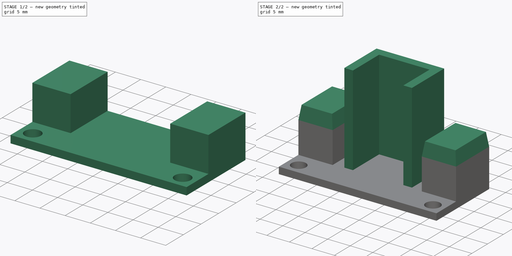
[diagram: build sequence overview — one tinted view per stage of 2, left to right]
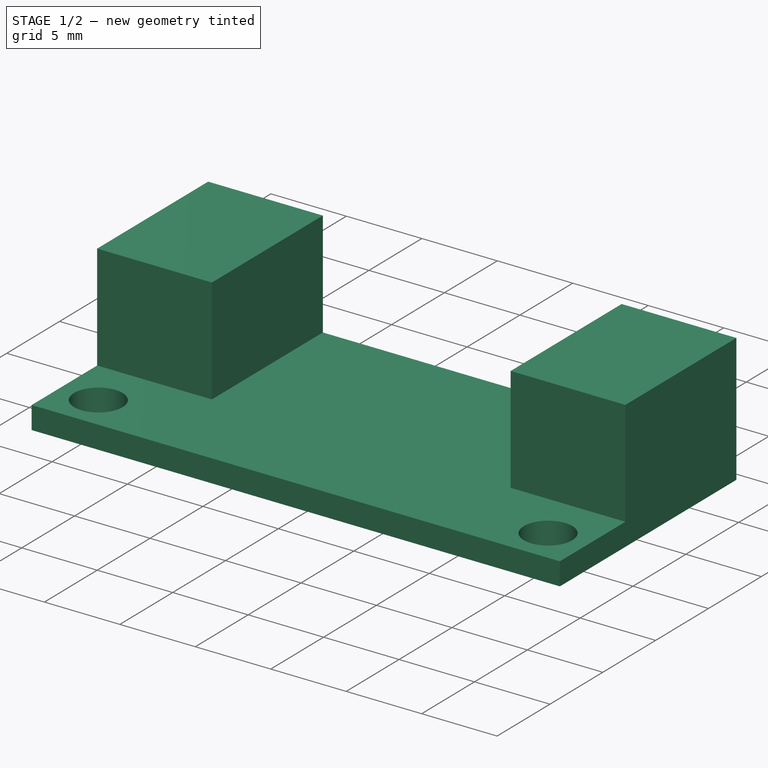
[diagram: stage 1 of 2 — iso view after this stage's code; geometry added in this stage tinted green]
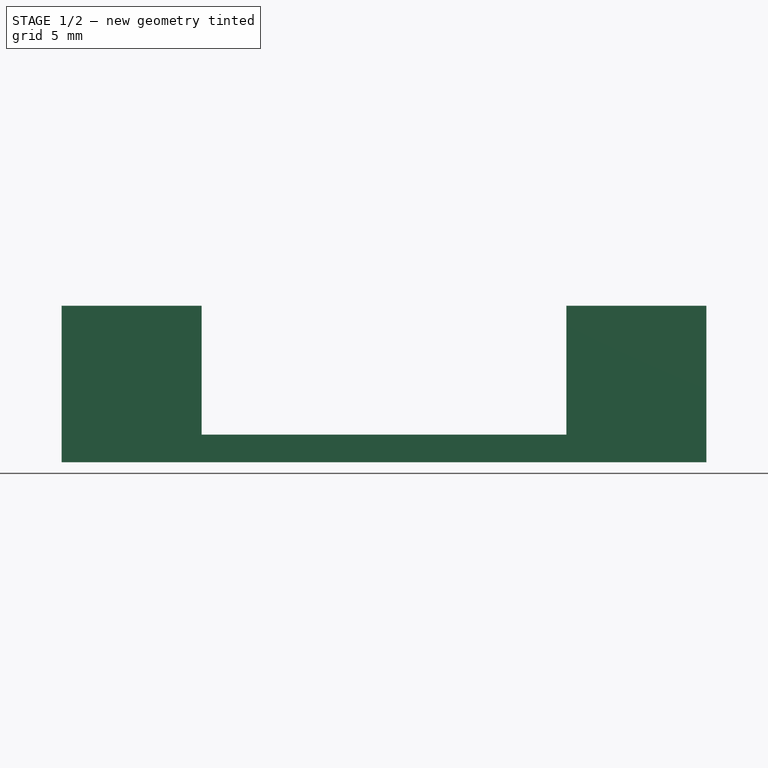
[diagram: stage 1 of 2 — front view after this stage's code; geometry added in this stage tinted green]
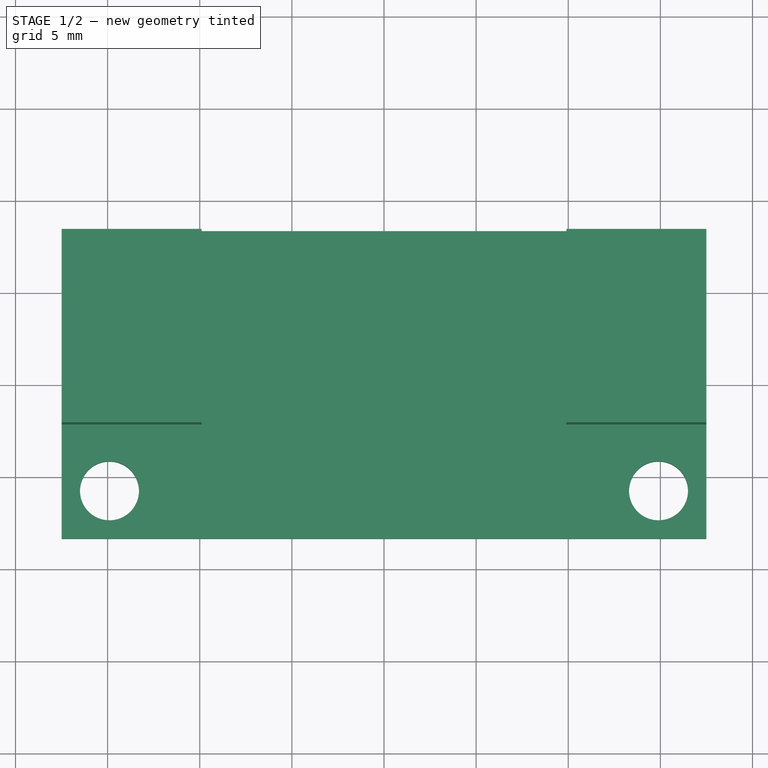
[diagram: stage 1 of 2 — top view after this stage's code; geometry added in this stage tinted green]
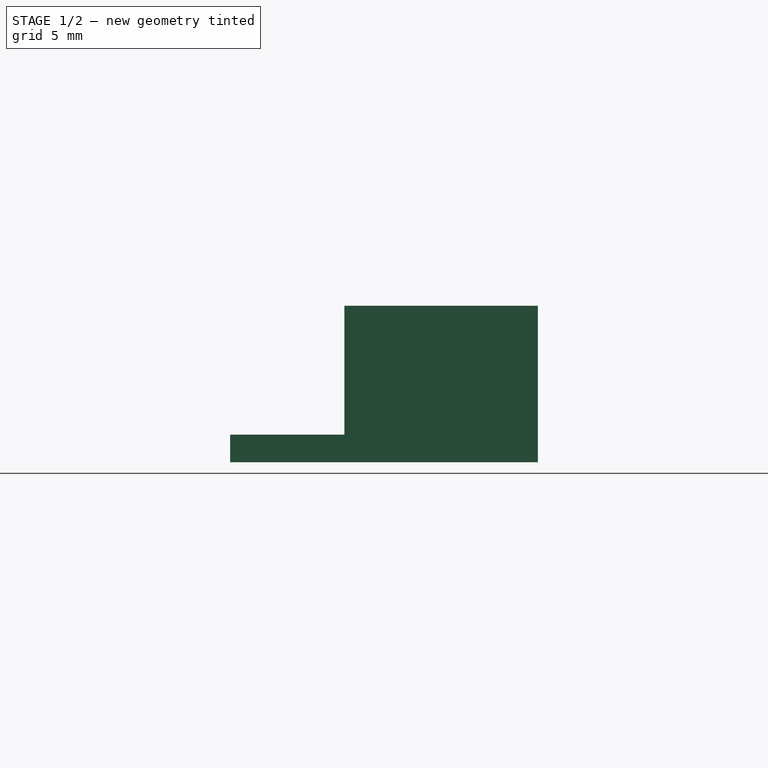
[diagram: stage 1 of 2 — right view after this stage's code; geometry added in this stage tinted green]
FCSTD DOCUMENT  (FreeCAD 0.22R36807 (Git))
Label: Buck Converter
License: Creative Commons Attribution 4.0
LicenseURL: https://creativecommons.org/licenses/by/4.0/
objects: Sketcher::SketchObject×4, PartDesign::Pad×4, Spreadsheet::Sheet×1, PartDesign::Body×1
note: 13 computed .brp shape members not serialized (recipe doc carries the construction recipe); baked Part::Feature solids carry a one-line shape summary decoded from their .brp

FEATURE [Sketcher::SketchObject] Sketch
  AttachmentSupport = -> [XY_Plane]
  FullyConstrained = true
  MapMode = 5
  expr: Constraints[10] = <<config>>.width
  expr: Constraints[12] = <<config>>.boltHoleRadius
  expr: Constraints[13] = <<config>>.boltHoleCenterToEdge
  expr: Constraints[14] = <<config>>.boltHoleCenterToEdge
  expr: Constraints[9] = <<config>>.length
  sketch-geometry (7):
    g0: LineSegment StartX=-17.5 StartY=-8.35 StartZ=0 EndX=17.5 EndY=-8.35 EndZ=0
    g1: LineSegment StartX=17.5 StartY=-8.35 StartZ=0 EndX=17.5 EndY=8.35 EndZ=0
    g2: LineSegment StartX=17.5 StartY=8.35 StartZ=0 EndX=-17.5 EndY=8.35 EndZ=0
    g3: LineSegment StartX=-17.5 StartY=8.35 StartZ=0 EndX=-17.5 EndY=-8.35 EndZ=0
    g4: GeomPoint X=0 Y=0 Z=0
    g5: Circle CenterX=-14.9 CenterY=-5.75 CenterZ=0 NormalX=0 NormalY=0 NormalZ=1 AngleXU=0 Radius=1.6
    g6: Circle CenterX=14.9 CenterY=-5.75 CenterZ=0 NormalX=0 NormalY=0 NormalZ=1 AngleXU=0 Radius=1.6
  constraints (17):
    c: Coincident(g0,g1)
    c: Coincident(g1,g2)
    c: Coincident(g2,g3)
    c: Coincident(g3,g0)
    c: Horizontal(g0)
    c: Horizontal(g2)
    c: Vertical(g1)
    c: Vertical(g3)
    c: Symmetric(g2,g0,g4)
    c: Distance(g1,g3) = 35
    c: Distance(g0,g2) = 16.7
    c: Coincident(g4,g-1)
    c: Radius(g5) = 1.6
    c: DistanceX(g0,g5) = 2.6
    c: DistanceY(g0,g5) = 2.6
    c: Equal(g6,g5)
    c: Symmetric(g6,g5,g-2)
FEATURE [Spreadsheet::Sheet] Spreadsheet  label="config"
  cells = A2='width; B2(width)=16.7; A3='length; B3(length)=35; A4='boltHoleRadius; B4(boltHoleRadius)=1.6; A5='boltHoleDistanceFromEdge; B5(boltHoleCenterToEdge)=2.6
FEATURE [PartDesign::Pad] Pad
  Direction = (0,0,1)
  Length = 1.5
  Length2 = 10
  Profile = -> Sketch
  ReferenceAxis = -> Sketch [N_Axis]
  Suppressed = false
  Type = 0
FEATURE [Sketcher::SketchObject] Sketch001
  AttachmentSupport = -> [Pad]
  ExternalGeometry = -> [Sketch]
  FullyConstrained = true
  MapMode = 5
  Placement = pos=(0,0,1.5) rot=(0,0,1;0rad)
  sketch-geometry (8):
    g0: LineSegment StartX=-17.5 StartY=8.35 StartZ=0 EndX=-17.5 EndY=-2.15 EndZ=0
    g1: LineSegment StartX=-17.5 StartY=-2.15 StartZ=0 EndX=-9.9 EndY=-2.15 EndZ=0
    g2: LineSegment StartX=-9.9 StartY=-2.15 StartZ=0 EndX=-9.9 EndY=8.35 EndZ=0
    g3: LineSegment StartX=-9.9 StartY=8.35 StartZ=0 EndX=-17.5 EndY=8.35 EndZ=0
    g4: LineSegment StartX=17.5 StartY=8.35 StartZ=0 EndX=9.9 EndY=8.35 EndZ=0
    g5: LineSegment StartX=9.9 StartY=8.35 StartZ=0 EndX=9.9 EndY=-2.15 EndZ=0
    g6: LineSegment StartX=9.9 StartY=-2.15 StartZ=0 EndX=17.5 EndY=-2.15 EndZ=0
    g7: LineSegment StartX=17.5 StartY=-2.15 StartZ=0 EndX=17.5 EndY=8.35 EndZ=0
  constraints (22):
    c: Coincident(g0,g1)
    c: Coincident(g1,g2)
    c: Coincident(g2,g3)
    c: Coincident(g3,g0)
    c: Vertical(g0)
    c: Vertical(g2)
    c: Horizontal(g1)
    c: Horizontal(g3)
    c: Distance(g0,g2) = 7.6
    c: Distance(g1,g3) = 10.5
    c: Coincident(g0,g-3)
    c: Coincident(g4,g5)
    c: Coincident(g5,g6)
    c: Coincident(g6,g7)
    c: Coincident(g7,g4)
    c: Horizontal(g4)
    c: Horizontal(g6)
    c: Vertical(g5)
    c: Vertical(g7)
    c: Distance(g5,g7) = 7.6
    c: Distance(g4,g6) = 10.5
    c: Coincident(g4,g-4)
FEATURE [PartDesign::Pad] Pad001
  BaseFeature = -> Pad
  Direction = (0,0,1)
  Length = 7
  Length2 = 10
  Profile = -> Sketch001
  ReferenceAxis = -> Sketch001 [N_Axis]
  Suppressed = false
  Type = 0
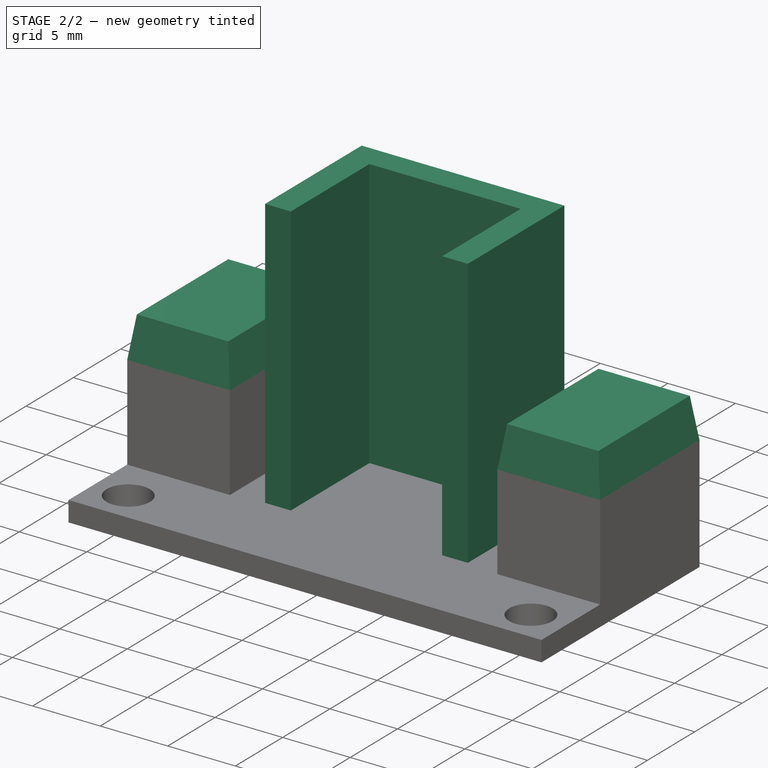
[diagram: stage 2 of 2 — iso view after this stage's code; geometry added in this stage tinted green]
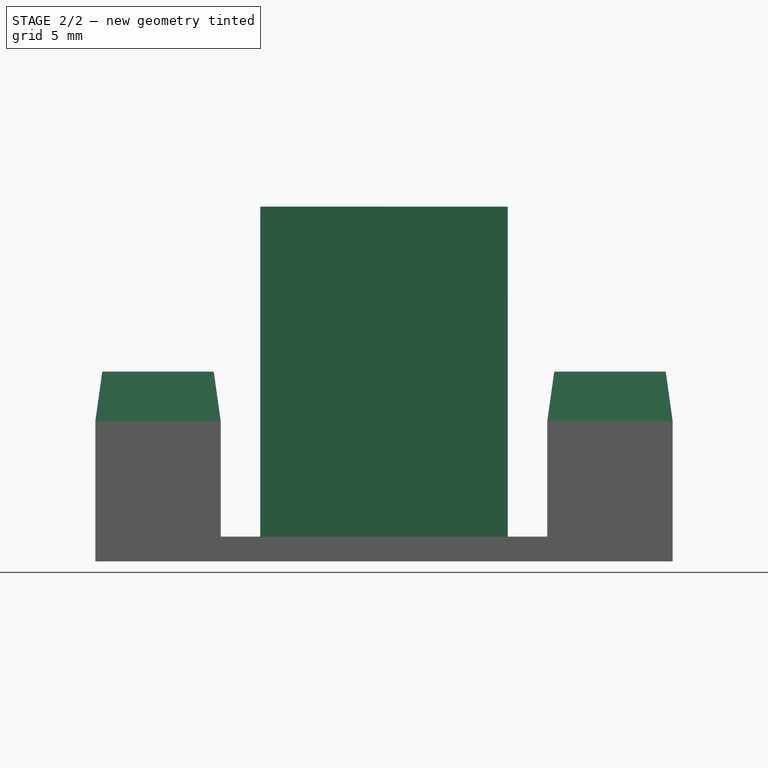
[diagram: stage 2 of 2 — front view after this stage's code; geometry added in this stage tinted green]
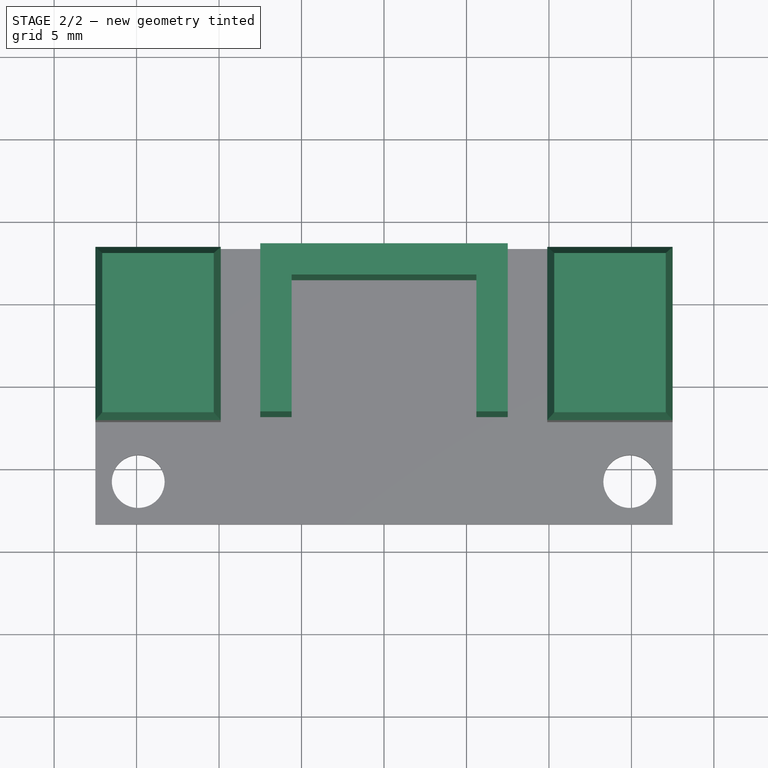
[diagram: stage 2 of 2 — top view after this stage's code; geometry added in this stage tinted green]
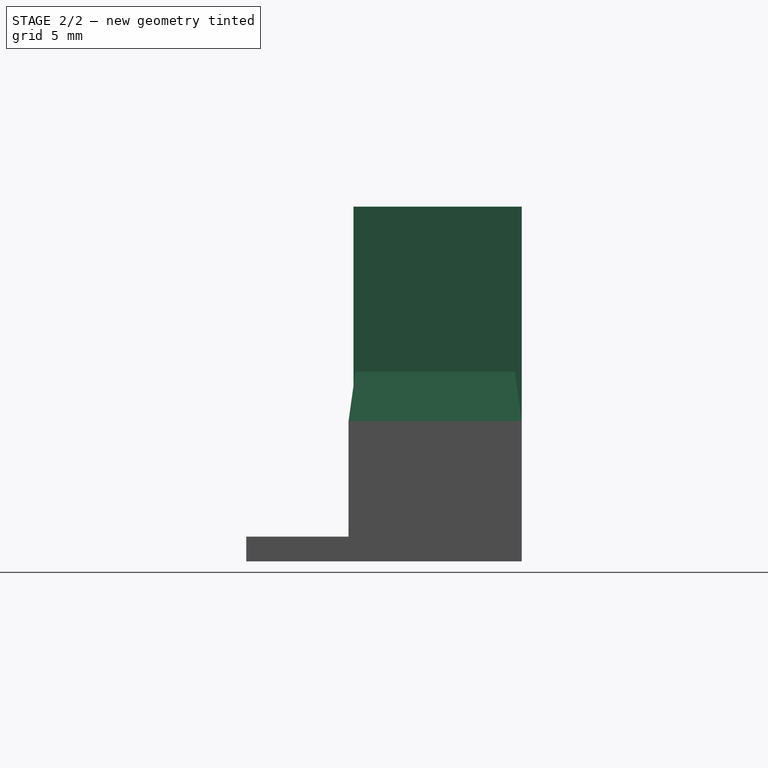
[diagram: stage 2 of 2 — right view after this stage's code; geometry added in this stage tinted green]
FEATURE [Sketcher::SketchObject] Sketch002
  AttachmentSupport = -> [Pad001]
  ExternalGeometry = -> [Sketch001]
  FullyConstrained = true
  MapMode = 5
  Placement = pos=(0,0,8.5) rot=(0,0,1;0rad)
  sketch-geometry (8):
    g0: LineSegment StartX=-17.5 StartY=8.35 StartZ=0 EndX=-17.5 EndY=-2.15 EndZ=0
    g1: LineSegment StartX=-17.5 StartY=-2.15 StartZ=0 EndX=-9.9 EndY=-2.15 EndZ=0
    g2: LineSegment StartX=-9.9 StartY=-2.15 StartZ=0 EndX=-9.9 EndY=8.35 EndZ=0
    g3: LineSegment StartX=-9.9 StartY=8.35 StartZ=0 EndX=-17.5 EndY=8.35 EndZ=0
    g4: LineSegment StartX=17.5 StartY=8.35 StartZ=0 EndX=9.9 EndY=8.35 EndZ=0
    g5: LineSegment StartX=9.9 StartY=8.35 StartZ=0 EndX=9.9 EndY=-2.15 EndZ=0
    g6: LineSegment StartX=9.9 StartY=-2.15 StartZ=0 EndX=17.5 EndY=-2.15 EndZ=0
    g7: LineSegment StartX=17.5 StartY=-2.15 StartZ=0 EndX=17.5 EndY=8.35 EndZ=0
  constraints (20):
    c: Coincident(g0,g1)
    c: Coincident(g1,g2)
    c: Coincident(g2,g3)
    c: Coincident(g3,g0)
    c: Vertical(g0)
    c: Vertical(g2)
    c: Horizontal(g1)
    c: Horizontal(g3)
    c: Coincident(g0,g-3)
    c: Coincident(g1,g-4)
    c: Coincident(g4,g5)
    c: Coincident(g5,g6)
    c: Coincident(g6,g7)
    c: Coincident(g7,g4)
    c: Horizontal(g4)
    c: Horizontal(g6)
    c: Vertical(g5)
    c: Vertical(g7)
    c: Coincident(g4,g-5)
    c: Coincident(g5,g-6)
FEATURE [PartDesign::Pad] Pad002
  BaseFeature = -> Pad001
  Direction = (0,0,1)
  Length = 3
  Length2 = 10
  Profile = -> Sketch002
  ReferenceAxis = -> Sketch002 [N_Axis]
  Suppressed = false
  TaperAngle = -8
  Type = 0
FEATURE [Sketcher::SketchObject] Sketch003
  AttachmentSupport = -> [Pad002]
  ExternalGeometry = -> [Sketch]
  FullyConstrained = true
  MapMode = 5
  Placement = pos=(0,0,1.5) rot=(0,0,1;0rad)
  sketch-geometry (8):
    g0: LineSegment StartX=-7.5 StartY=8.35 StartZ=0 EndX=-7.5 EndY=-1.85 EndZ=0
    g1: LineSegment StartX=7.5 StartY=-1.85 StartZ=0 EndX=7.5 EndY=8.35 EndZ=0
    g2: LineSegment StartX=7.5 StartY=8.35 StartZ=0 EndX=-7.5 EndY=8.35 EndZ=0
    g3: LineSegment StartX=-7.5 StartY=-1.85 StartZ=0 EndX=-5.6 EndY=-1.85 EndZ=0
    g4: LineSegment StartX=-5.6 StartY=-1.85 StartZ=0 EndX=-5.6 EndY=6.45 EndZ=0
    g5: LineSegment StartX=-5.6 StartY=6.45 StartZ=0 EndX=5.6 EndY=6.45 EndZ=0
    g6: LineSegment StartX=5.6 StartY=6.45 StartZ=0 EndX=5.6 EndY=-1.85 EndZ=0
    g7: LineSegment StartX=5.6 StartY=-1.85 StartZ=0 EndX=7.5 EndY=-1.85 EndZ=0
  constraints (23):
    c: Coincident(g1,g2)
    c: Coincident(g2,g0)
    c: Vertical(g0)
    c: Vertical(g1)
    c: Horizontal(g2)
    c: Distance(g0,g1) = 15
    c: Distance(g0,g2) = 10.2
    c: PointOnObject(g0,g-3)
    c: Symmetric(g0,g1,g-2)
    c: Coincident(g0,g3)
    c: Horizontal(g3)
    c: Coincident(g3,g4)
    c: Vertical(g4)
    c: Coincident(g4,g5)
    c: Horizontal(g5)
    c: Coincident(g5,g6)
    c: Vertical(g6)
    c: Coincident(g6,g7)
    c: Coincident(g7,g1)
    c: Horizontal(g7)
    c: Equal(g3,g7)
    c: DistanceX(g0,g3) = 1.9
    c: DistanceY(g5,g1) = 1.9
FEATURE [PartDesign::Pad] Pad003
  BaseFeature = -> Pad002
  Direction = (0,0,1)
  Length = 20
  Length2 = 10
  Profile = -> Sketch003
  ReferenceAxis = -> Sketch003 [N_Axis]
  Suppressed = false
  Type = 0
FEATURE [PartDesign::Body] Body
  Group = -> [Sketch,Pad,Sketch001,Pad001,Sketch002,Pad002,Sketch003,Pad003]
  Origin = -> Origin
  Tip = -> Pad003
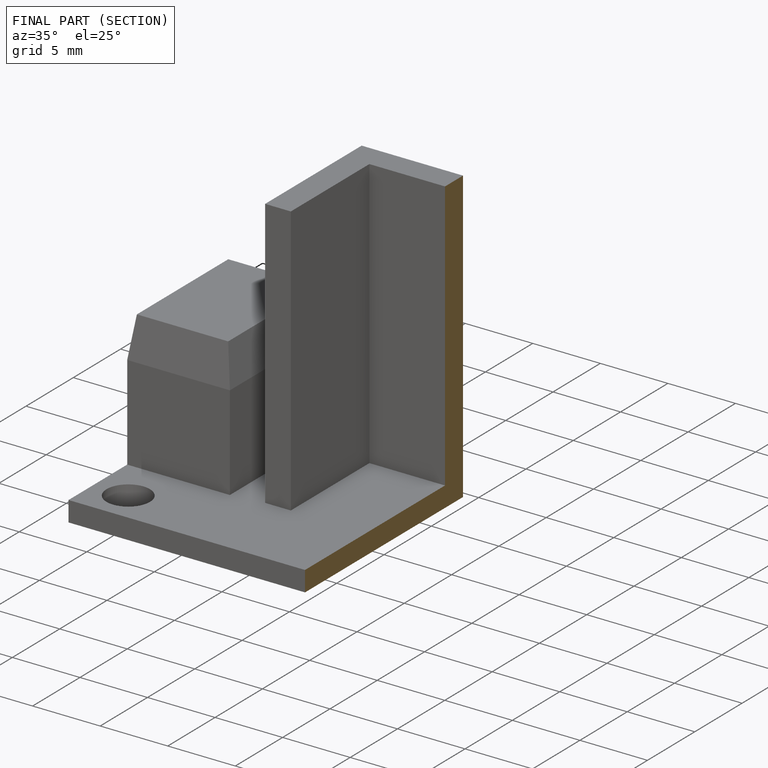
[diagram: finished part — half-section view (interior)]
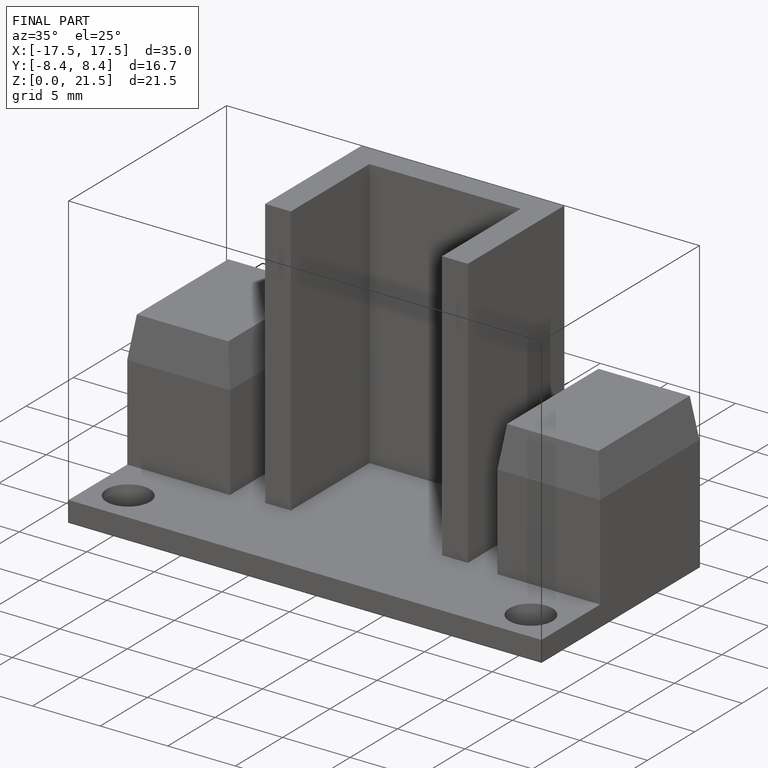
[diagram: finished part — iso view with bounding-box wireframe]
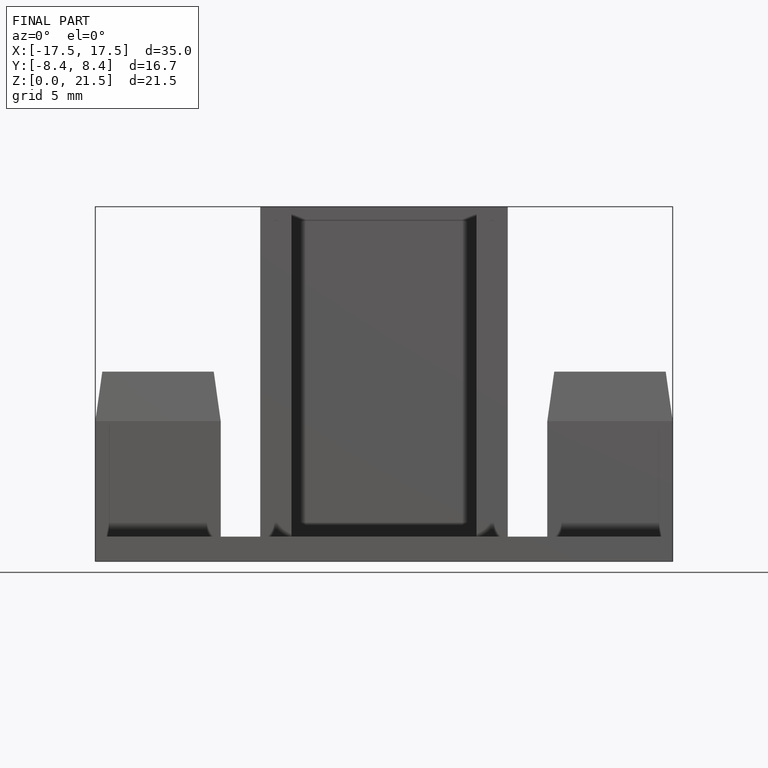
[diagram: finished part — front view with bounding-box wireframe]
